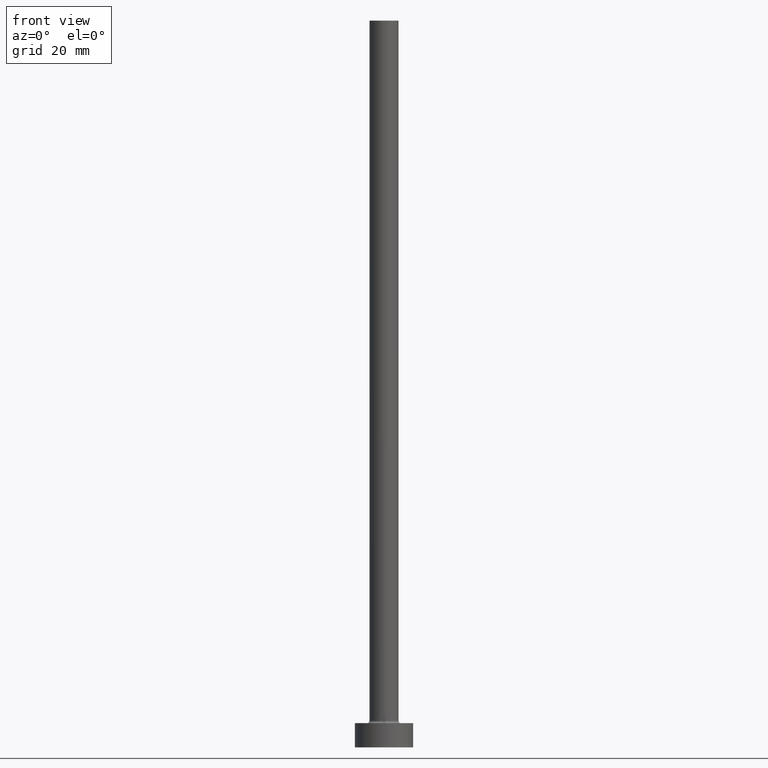
[diagram: clean part render]
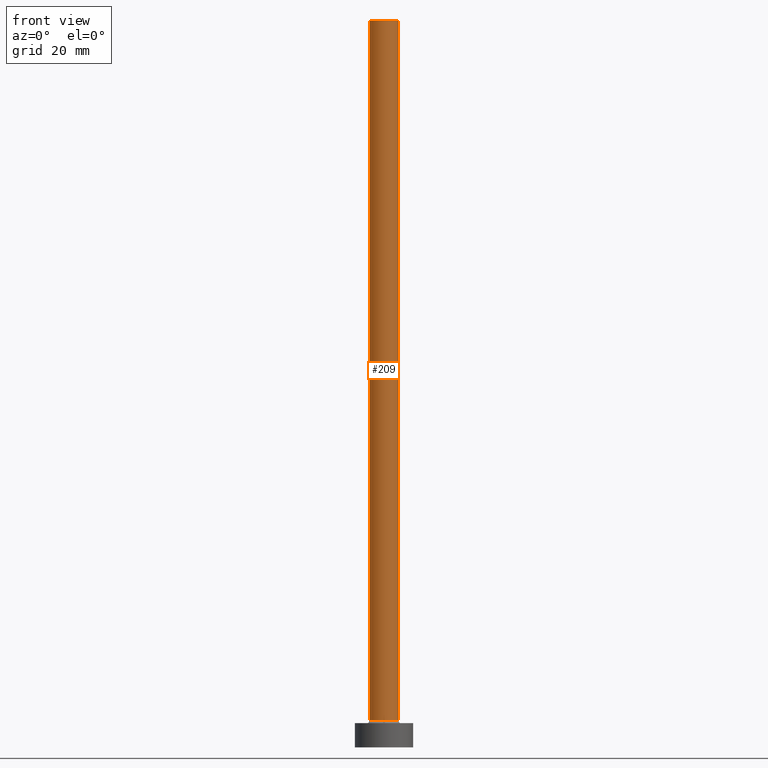
[diagram: same view with one face highlighted and labeled with its STEP entity id]
A machine part, front view. The second image highlights one B-rep face of the part: STEP entity #209.
In plain terms, the highlighted cylindrical surface (edge-blend (fillet) strip) has radius 3 mm, axis along (-0, -0, -1).
Its self-contained STEP definition (entity closure, byte-faithful):
#16 = DIRECTION ( 'NONE',  ( 1.000000000000000000, 0.000000000000000000, 0.000000000000000000 ) ) ;
#23 = AXIS2_PLACEMENT_3D ( 'NONE', #424, #459, #227 ) ;
#37 = CARTESIAN_POINT ( 'NONE',  ( -3.000000000000000444, 0.000000000000000000, 5.500000000000005329 ) ) ;
#43 = CIRCLE ( 'NONE', #23, 3.000000000000000444 ) ;
#57 = VERTEX_POINT ( 'NONE', #37 ) ;
#69 = DIRECTION ( 'NONE',  ( -0.000000000000000000, -0.000000000000000000, -1.000000000000000000 ) ) ;
#87 = CARTESIAN_POINT ( 'NONE',  ( -3.000000000000000444, 0.000000000000000000, 150.0000000000000000 ) ) ;
#118 = CYLINDRICAL_SURFACE ( 'NONE', #367, 3.000000000000000444 ) ;
#119 = VERTEX_POINT ( 'NONE', #267 ) ;
#149 = EDGE_CURVE ( 'NONE', #261, #119, #390, .T. ) ;
#182 = ORIENTED_EDGE ( 'NONE', *, *, #220, .F. ) ;
#183 = DIRECTION ( 'NONE',  ( 0.000000000000000000, 0.000000000000000000, 1.000000000000000000 ) ) ;
#193 = CARTESIAN_POINT ( 'NONE',  ( 0.000000000000000000, 0.000000000000000000, 150.0000000000000000 ) ) ;
#202 = LINE ( 'NONE', #280, #222 ) ;
#207 = CARTESIAN_POINT ( 'NONE',  ( -3.000000000000000444, 0.000000000000000000, 150.0000000000000000 ) ) ;
#209 = ADVANCED_FACE ( 'NONE', ( #444 ), #118, .T. ) ;
#220 = EDGE_CURVE ( 'NONE', #119, #271, #202, .T. ) ;
#222 = VECTOR ( 'NONE', #69, 1000.000000000000000 ) ;
#227 = DIRECTION ( 'NONE',  ( 1.000000000000000000, 0.000000000000000000, 0.000000000000000000 ) ) ;
#251 = AXIS2_PLACEMENT_3D ( 'NONE', #291, #183, #16 ) ;
#261 = VERTEX_POINT ( 'NONE', #207 ) ;
#266 = ORIENTED_EDGE ( 'NONE', *, *, #149, .F. ) ;
#267 = CARTESIAN_POINT ( 'NONE',  ( 3.000000000000000444, 3.673940397442060361E-16, 150.0000000000000000 ) ) ;
#271 = VERTEX_POINT ( 'NONE', #437 ) ;
#280 = CARTESIAN_POINT ( 'NONE',  ( 3.000000000000000444, 3.673940397442060361E-16, 150.0000000000000000 ) ) ;
#291 = CARTESIAN_POINT ( 'NONE',  ( 0.000000000000000000, 0.000000000000000000, 150.0000000000000000 ) ) ;
#308 = DIRECTION ( 'NONE',  ( -0.000000000000000000, -0.000000000000000000, -1.000000000000000000 ) ) ;
#333 = LINE ( 'NONE', #87, #412 ) ;
#338 = EDGE_CURVE ( 'NONE', #261, #57, #333, .T. ) ;
#341 = DIRECTION ( 'NONE',  ( -1.000000000000000000, 0.000000000000000000, 0.000000000000000000 ) ) ;
#363 = EDGE_LOOP ( 'NONE', ( #182, #266, #397, #369 ) ) ;
#367 = AXIS2_PLACEMENT_3D ( 'NONE', #193, #414, #341 ) ;
#369 = ORIENTED_EDGE ( 'NONE', *, *, #439, .T. ) ;
#390 = CIRCLE ( 'NONE', #251, 3.000000000000000444 ) ;
#397 = ORIENTED_EDGE ( 'NONE', *, *, #338, .T. ) ;
#412 = VECTOR ( 'NONE', #308, 1000.000000000000000 ) ;
#414 = DIRECTION ( 'NONE',  ( -0.000000000000000000, -0.000000000000000000, -1.000000000000000000 ) ) ;
#424 = CARTESIAN_POINT ( 'NONE',  ( 0.000000000000000000, 0.000000000000000000, 5.500000000000005329 ) ) ;
#437 = CARTESIAN_POINT ( 'NONE',  ( 3.000000000000000444, 3.673940397442060361E-16, 5.500000000000005329 ) ) ;
#439 = EDGE_CURVE ( 'NONE', #57, #271, #43, .T. ) ;
#444 = FACE_OUTER_BOUND ( 'NONE', #363, .T. ) ;
#459 = DIRECTION ( 'NONE',  ( 0.000000000000000000, 0.000000000000000000, 1.000000000000000000 ) ) ;